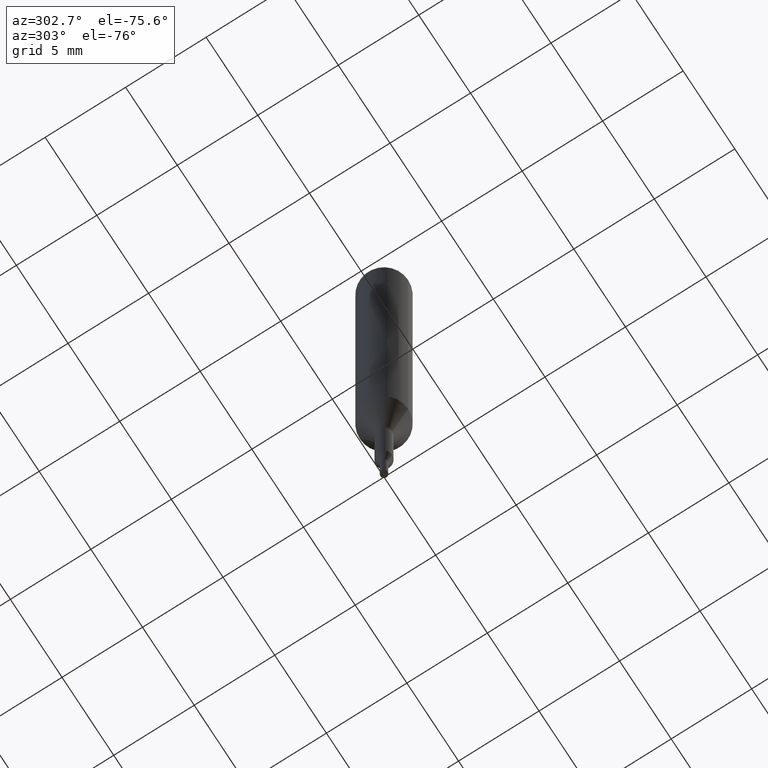
[diagram: clean part render]
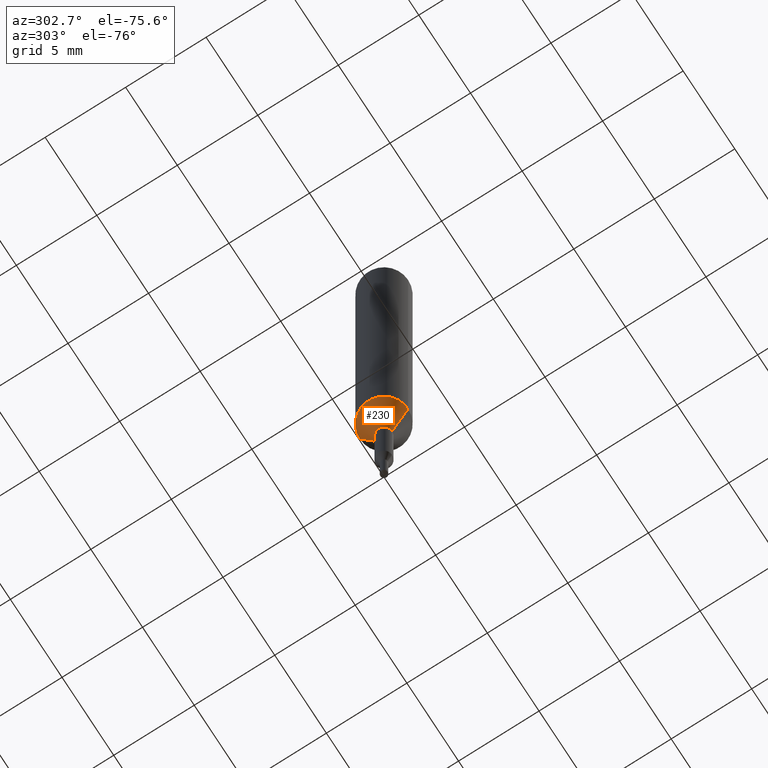
[diagram: same view with one face highlighted and labeled with its STEP entity id]
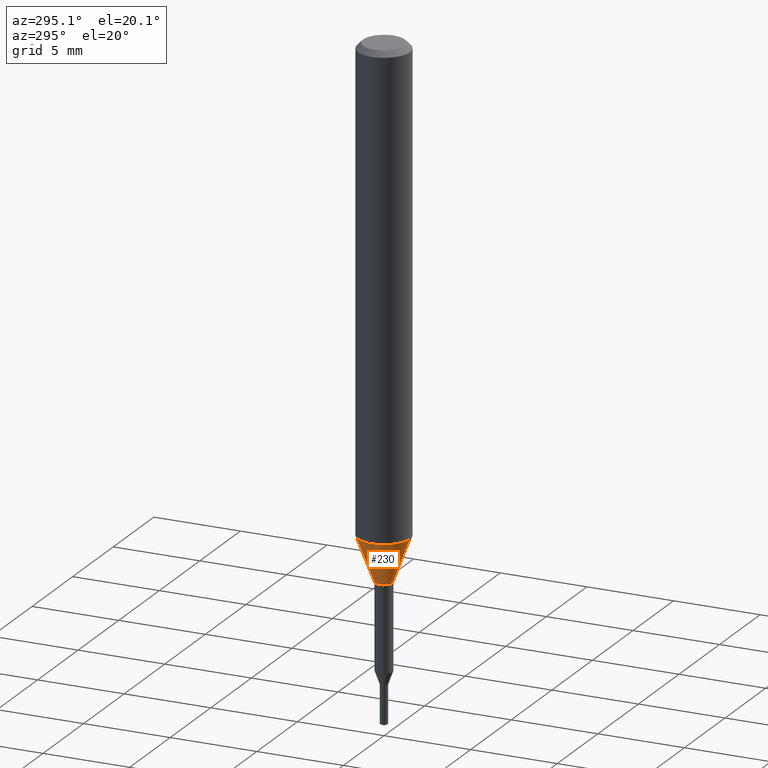
[diagram: same view with one face highlighted and labeled with its STEP entity id]
A machine part, auxiliary view. The second image highlights one B-rep face of the part: STEP entity #230.
A second angle (auxiliary view) of the same face is appended — the face is thin or edge-on in the first view.
In plain terms, the highlighted conical surface has half-angle 21.001 deg.
Its self-contained STEP definition (entity closure, byte-faithful):
#114=VERTEX_POINT('',#291);
#150=EDGE_CURVE('',#184,#176,#331,.T.);
#162=VERTEX_POINT('',#346);
#166=EDGE_CURVE('',#162,#176,#352,.T.);
#172=EDGE_CURVE('',#114,#184,#358,.T.);
#176=VERTEX_POINT('',#362);
#178=EDGE_CURVE('',#162,#114,#364,.T.);
#184=VERTEX_POINT('',#370);
#230=ADVANCED_FACE('',(#423),#424,.T.);
#291=CARTESIAN_POINT('',(1.83690953073357E-016,-1.5,-27.395));
#331=LINE('',#533,#534);
#346=CARTESIAN_POINT('',(6.12303176911189E-017,-0.5,-30.0));
#352=CIRCLE('',#559,0.5);
#358=CIRCLE('',#568,1.5);
#362=CARTESIAN_POINT('',(0.0,0.5,-30.0));
#364=LINE('',#576,#577);
#370=CARTESIAN_POINT('',(0.0,1.5,-27.395));
#423=FACE_OUTER_BOUND('',#649,.T.);
#424=CONICAL_SURFACE('',#650,1.0,0.366530581623394);
#533=CARTESIAN_POINT('',(-1.22460635382238E-016,1.0,-28.6975));
#534=VECTOR('',#751,1.0);
#559=AXIS2_PLACEMENT_3D('',#786,#787,#788);
#568=AXIS2_PLACEMENT_3D('',#795,#796,#797);
#576=CARTESIAN_POINT('',(1.22460635382238E-016,-1.0,-28.6975));
#577=VECTOR('',#801,1.0);
#649=EDGE_LOOP('',(#883,#884,#885,#886));
#650=AXIS2_PLACEMENT_3D('',#887,#888,#889);
#751=DIRECTION('',(4.38872745501645E-017,-0.35837862847256,-0.933576327171018));
#786=CARTESIAN_POINT('',(0.0,0.0,-30.0));
#787=DIRECTION('',(0.0,0.0,-1.0));
#788=DIRECTION('',(0.0,1.0,0.0));
#795=CARTESIAN_POINT('',(0.0,0.0,-27.395));
#796=DIRECTION('',(0.0,0.0,-1.0));
#797=DIRECTION('',(0.0,1.0,0.0));
#801=DIRECTION('',(4.38872745501645E-017,-0.35837862847256,0.933576327171018));
#883=ORIENTED_EDGE('',*,*,#150,.T.);
#884=ORIENTED_EDGE('',*,*,#166,.F.);
#885=ORIENTED_EDGE('',*,*,#178,.T.);
#886=ORIENTED_EDGE('',*,*,#172,.T.);
#887=CARTESIAN_POINT('',(0.0,0.0,-28.6975));
#888=DIRECTION('',(-0.0,-0.0,1.0));
#889=DIRECTION('',(0.0,1.0,0.0));